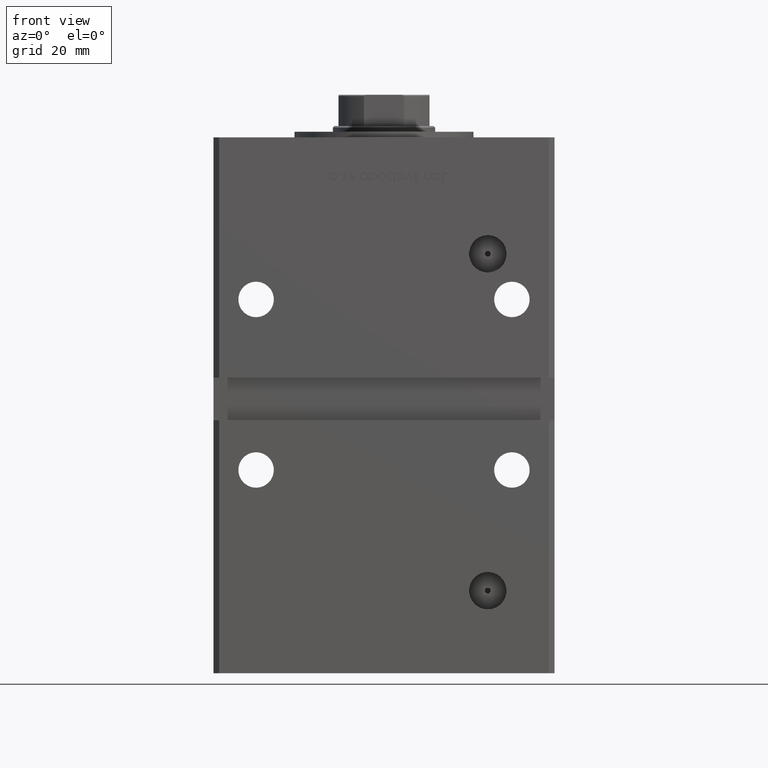
[diagram: clean part render]
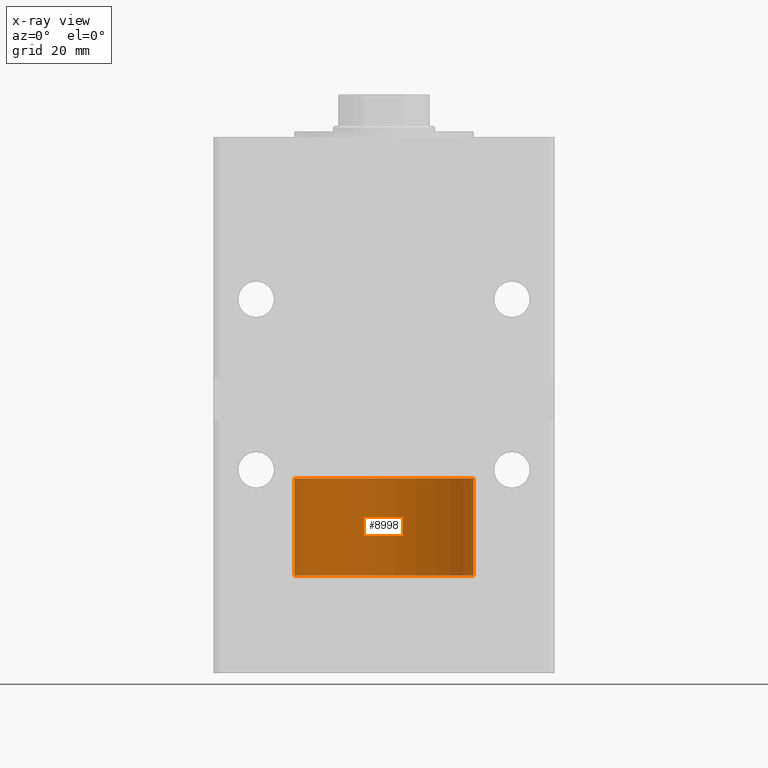
[diagram: x-ray — body ghosted, one internal face saturated and labeled with its STEP entity id]
A machine part, front view, then the same camera in x-ray: the body is ghosted and one INTERNAL B-rep face — a face not visible from any outside direction — is saturated and labeled: STEP entity #8998.
In plain terms, the highlighted cylindrical surface (partial cylindrical patch) has radius 31.5 mm, axis along (-0, -0, -1).
Its self-contained STEP definition (entity closure, byte-faithful):
#2009 = EDGE_CURVE ( 'NONE', #30910, #32855, #16659, .T. ) ;
#2590 = DIRECTION ( 'NONE',  ( 1.000000000000000000, 0.000000000000000000, 0.000000000000000000 ) ) ;
#2680 = VECTOR ( 'NONE', #18345, 1000.000000000000000 ) ;
#4898 = ORIENTED_EDGE ( 'NONE', *, *, #19418, .F. ) ;
#5618 = VECTOR ( 'NONE', #32226, 1000.000000000000000 ) ;
#6031 = CYLINDRICAL_SURFACE ( 'NONE', #8612, 31.50000000000000000 ) ;
#8612 = AXIS2_PLACEMENT_3D ( 'NONE', #38481, #30168, #30701 ) ;
#8998 = ADVANCED_FACE ( 'NONE', ( #26913 ), #6031, .T. ) ;
#10683 = EDGE_CURVE ( 'NONE', #36143, #49564, #46787, .T. ) ;
#10980 = ORIENTED_EDGE ( 'NONE', *, *, #10683, .F. ) ;
#11049 = DIRECTION ( 'NONE',  ( 1.000000000000000000, 0.000000000000000000, 0.000000000000000000 ) ) ;
#11951 = CARTESIAN_POINT ( 'NONE',  ( 0.000000000000000000, 0.000000000000000000, 34.25000000000000000 ) ) ;
#13183 = CIRCLE ( 'NONE', #43154, 31.50000000000000000 ) ;
#16659 = LINE ( 'NONE', #28985, #5618 ) ;
#17549 = EDGE_LOOP ( 'NONE', ( #4898, #47420, #28942, #10980 ) ) ;
#17925 = CARTESIAN_POINT ( 'NONE',  ( 31.50000000000000000, 3.857637417314162689E-15, 34.25000000000000000 ) ) ;
#18345 = DIRECTION ( 'NONE',  ( -0.000000000000000000, -0.000000000000000000, -1.000000000000000000 ) ) ;
#18394 = CARTESIAN_POINT ( 'NONE',  ( 31.50000000000000000, 3.857637417314162689E-15, 0.000000000000000000 ) ) ;
#19418 = EDGE_CURVE ( 'NONE', #30910, #36143, #35349, .T. ) ;
#23308 = AXIS2_PLACEMENT_3D ( 'NONE', #11951, #52684, #2590 ) ;
#23839 = EDGE_CURVE ( 'NONE', #32855, #49564, #13183, .T. ) ;
#26837 = DIRECTION ( 'NONE',  ( 0.000000000000000000, 0.000000000000000000, 1.000000000000000000 ) ) ;
#26913 = FACE_OUTER_BOUND ( 'NONE', #17549, .T. ) ;
#27817 = CARTESIAN_POINT ( 'NONE',  ( -31.50000000000000000, 0.000000000000000000, 0.000000000000000000 ) ) ;
#28942 = ORIENTED_EDGE ( 'NONE', *, *, #23839, .T. ) ;
#28985 = CARTESIAN_POINT ( 'NONE',  ( 31.50000000000000000, 3.857637417314162689E-15, 34.25000000000000000 ) ) ;
#30168 = DIRECTION ( 'NONE',  ( -0.000000000000000000, -0.000000000000000000, -1.000000000000000000 ) ) ;
#30701 = DIRECTION ( 'NONE',  ( -1.000000000000000000, 0.000000000000000000, 0.000000000000000000 ) ) ;
#30910 = VERTEX_POINT ( 'NONE', #17925 ) ;
#32226 = DIRECTION ( 'NONE',  ( -0.000000000000000000, -0.000000000000000000, -1.000000000000000000 ) ) ;
#32855 = VERTEX_POINT ( 'NONE', #18394 ) ;
#35349 = CIRCLE ( 'NONE', #23308, 31.50000000000000000 ) ;
#36143 = VERTEX_POINT ( 'NONE', #36536 ) ;
#36536 = CARTESIAN_POINT ( 'NONE',  ( -31.50000000000000000, 0.000000000000000000, 34.25000000000000000 ) ) ;
#38481 = CARTESIAN_POINT ( 'NONE',  ( 0.000000000000000000, 0.000000000000000000, 34.25000000000000000 ) ) ;
#38926 = CARTESIAN_POINT ( 'NONE',  ( 0.000000000000000000, 0.000000000000000000, 0.000000000000000000 ) ) ;
#43154 = AXIS2_PLACEMENT_3D ( 'NONE', #38926, #26837, #11049 ) ;
#46787 = LINE ( 'NONE', #50282, #2680 ) ;
#47420 = ORIENTED_EDGE ( 'NONE', *, *, #2009, .T. ) ;
#49564 = VERTEX_POINT ( 'NONE', #27817 ) ;
#50282 = CARTESIAN_POINT ( 'NONE',  ( -31.50000000000000000, 0.000000000000000000, 34.25000000000000000 ) ) ;
#52684 = DIRECTION ( 'NONE',  ( 0.000000000000000000, 0.000000000000000000, 1.000000000000000000 ) ) ;